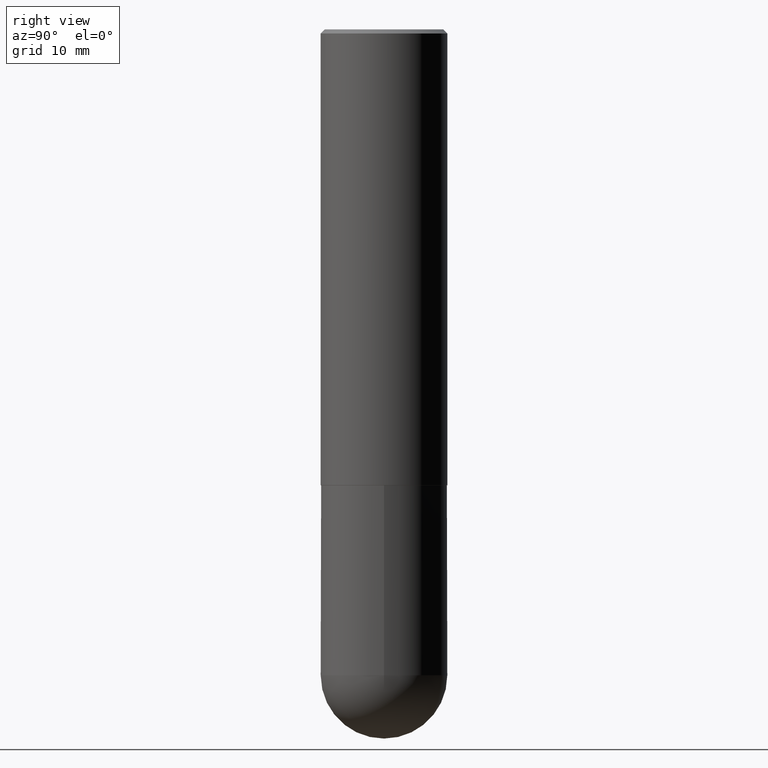
[diagram: clean part render]
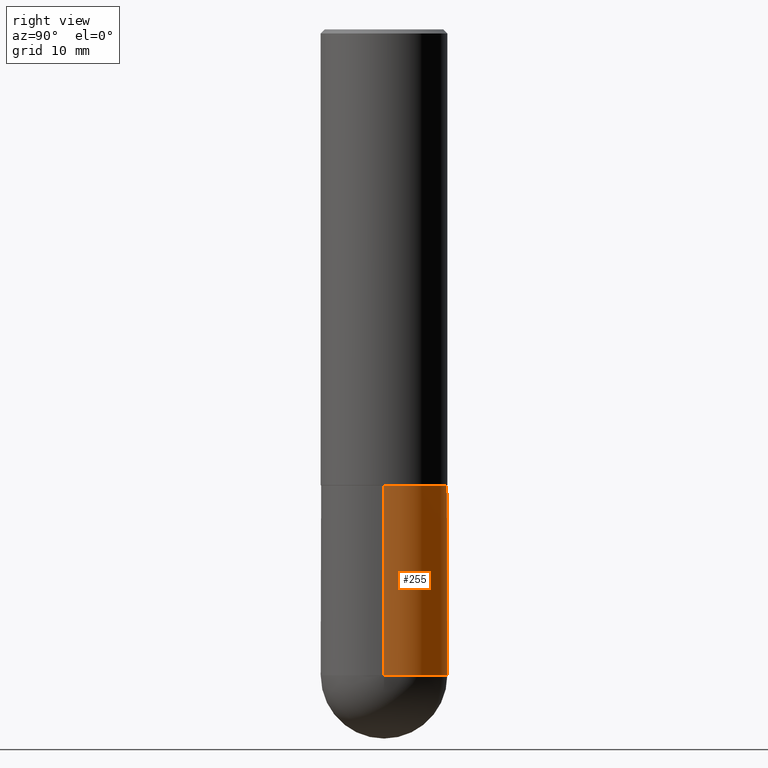
[diagram: same view with one face highlighted and labeled with its STEP entity id]
A machine part, right view. The second image highlights one B-rep face of the part: STEP entity #255.
In plain terms, the highlighted cylindrical surface (partial cylindrical patch) has radius 7.9375 mm, axis along (-0, 0, 1).
Its self-contained STEP definition (entity closure, byte-faithful):
#19 = CARTESIAN_POINT ( 'NONE',  ( 7.794931819715121781E-29, -1.112909676756252622E-14, -3.187500000000000000 ) ) ;
#21 = DIRECTION ( 'NONE',  ( 1.000000000000000000, -6.982962677686269077E-15, 0.000000000000000000 ) ) ;
#32 = DIRECTION ( 'NONE',  ( -2.445468806185136877E-29, 3.491481338843145188E-15, 1.000000000000000000 ) ) ;
#56 = EDGE_CURVE ( 'NONE', #250, #326, #118, .T. ) ;
#61 = LINE ( 'NONE', #131, #70 ) ;
#65 = ORIENTED_EDGE ( 'NONE', *, *, #405, .T. ) ;
#69 = ORIENTED_EDGE ( 'NONE', *, *, #237, .F. ) ;
#70 = VECTOR ( 'NONE', #32, 39.37007874015748143 ) ;
#103 = CIRCLE ( 'NONE', #238, 0.3125000000000000000 ) ;
#107 = CARTESIAN_POINT ( 'NONE',  ( -0.3125000000000000000, -7.272018840729490833E-15, -3.187500000000000000 ) ) ;
#113 = EDGE_CURVE ( 'NONE', #406, #197, #103, .T. ) ;
#115 = DIRECTION ( 'NONE',  ( -2.445468806185136877E-29, 3.491481338843145188E-15, 1.000000000000000000 ) ) ;
#118 = CIRCLE ( 'NONE', #370, 0.3125000000000000000 ) ;
#120 = DIRECTION ( 'NONE',  ( 1.000000000000000000, -6.982962677686266711E-15, 4.876176775795936353E-29 ) ) ;
#122 = CARTESIAN_POINT ( 'NONE',  ( 0.3125000000000000000, -1.167464072675676384E-14, -3.187500000000000000 ) ) ;
#124 = CYLINDRICAL_SURFACE ( 'NONE', #126, 0.3125000000000000000 ) ;
#126 = AXIS2_PLACEMENT_3D ( 'NONE', #380, #246, #120 ) ;
#129 = CARTESIAN_POINT ( 'NONE',  ( 5.502304813916556222E-29, -7.855833012397076871E-15, -2.249999999999999556 ) ) ;
#131 = CARTESIAN_POINT ( 'NONE',  ( -0.3125000000000000000, 2.220446049250313081E-15, -1.537167215704658232E-29 ) ) ;
#157 = CARTESIAN_POINT ( 'NONE',  ( 0.3125000000000000000, -1.003800884917403522E-14, -2.249999999999999556 ) ) ;
#161 = ORIENTED_EDGE ( 'NONE', *, *, #113, .F. ) ;
#181 = CARTESIAN_POINT ( 'NONE',  ( 7.794931819715121781E-29, -1.112909676756252622E-14, -3.187500000000000000 ) ) ;
#187 = DIRECTION ( 'NONE',  ( -2.445468806185136597E-29, 3.491481338843145583E-15, 1.000000000000000000 ) ) ;
#197 = VERTEX_POINT ( 'NONE', #257 ) ;
#209 = AXIS2_PLACEMENT_3D ( 'NONE', #19, #234, #21 ) ;
#211 = LINE ( 'NONE', #328, #263 ) ;
#219 = DIRECTION ( 'NONE',  ( -2.445468806185136597E-29, 3.491481338843145583E-15, 1.000000000000000000 ) ) ;
#221 = EDGE_CURVE ( 'NONE', #326, #319, #277, .T. ) ;
#229 = ORIENTED_EDGE ( 'NONE', *, *, #56, .T. ) ;
#234 = DIRECTION ( 'NONE',  ( -2.445468806185136597E-29, 3.491481338843145583E-15, 1.000000000000000000 ) ) ;
#237 = EDGE_CURVE ( 'NONE', #250, #406, #211, .T. ) ;
#238 = AXIS2_PLACEMENT_3D ( 'NONE', #129, #219, #347 ) ;
#244 = DIRECTION ( 'NONE',  ( 1.000000000000000000, -6.982962677686269077E-15, 0.000000000000000000 ) ) ;
#246 = DIRECTION ( 'NONE',  ( -2.445468806185136597E-29, 3.491481338843145583E-15, 1.000000000000000000 ) ) ;
#250 = VERTEX_POINT ( 'NONE', #122 ) ;
#255 = ADVANCED_FACE ( 'NONE', ( #382 ), #124, .T. ) ;
#257 = CARTESIAN_POINT ( 'NONE',  ( -0.3125000000000000000, -7.272018840729487678E-15, -2.249999999999999556 ) ) ;
#263 = VECTOR ( 'NONE', #115, 39.37007874015748143 ) ;
#277 = CIRCLE ( 'NONE', #209, 0.3125000000000000000 ) ;
#286 = CARTESIAN_POINT ( 'NONE',  ( 2.182175836777035261E-15, 0.3124999999999887867, -3.187500000000000888 ) ) ;
#290 = EDGE_LOOP ( 'NONE', ( #412, #65, #161, #69, #229 ) ) ;
#319 = VERTEX_POINT ( 'NONE', #107 ) ;
#326 = VERTEX_POINT ( 'NONE', #286 ) ;
#328 = CARTESIAN_POINT ( 'NONE',  ( 0.3125000000000000000, -2.182175836776958347E-15, 1.523805242436230075E-29 ) ) ;
#347 = DIRECTION ( 'NONE',  ( 1.000000000000000000, -6.982962677686269077E-15, 0.000000000000000000 ) ) ;
#370 = AXIS2_PLACEMENT_3D ( 'NONE', #181, #187, #244 ) ;
#380 = CARTESIAN_POINT ( 'NONE',  ( 0.000000000000000000, 0.000000000000000000, 0.000000000000000000 ) ) ;
#382 = FACE_OUTER_BOUND ( 'NONE', #290, .T. ) ;
#405 = EDGE_CURVE ( 'NONE', #319, #197, #61, .T. ) ;
#406 = VERTEX_POINT ( 'NONE', #157 ) ;
#412 = ORIENTED_EDGE ( 'NONE', *, *, #221, .T. ) ;